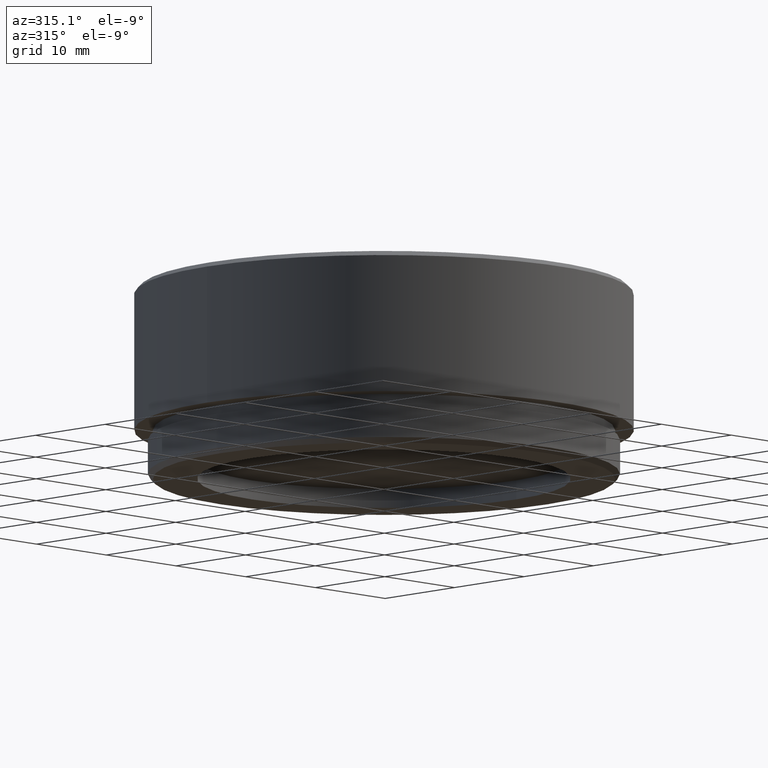
[diagram: clean part render]
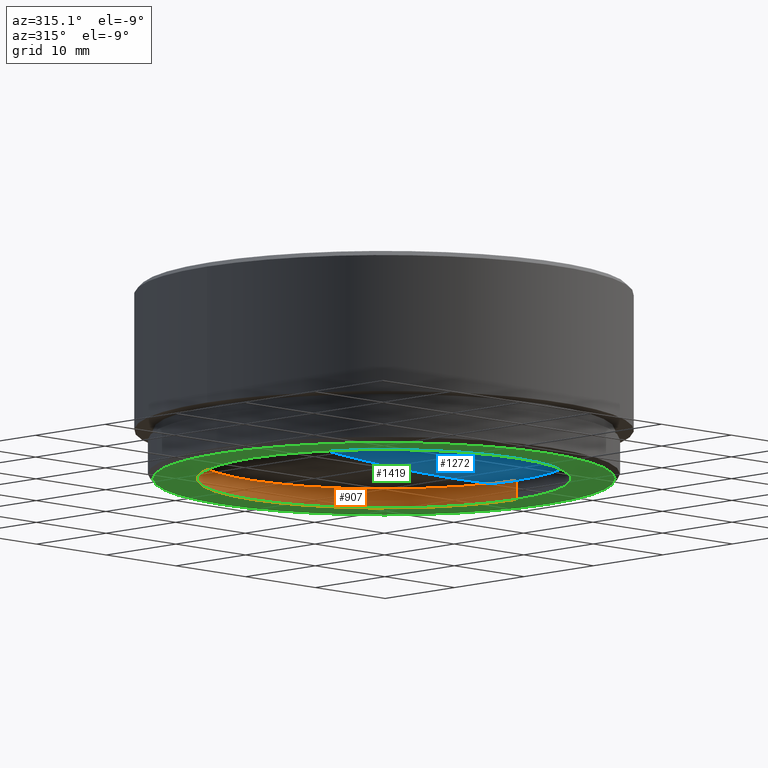
[diagram: same view with three faces highlighted in distinct colors, each labeled with its STEP entity id]
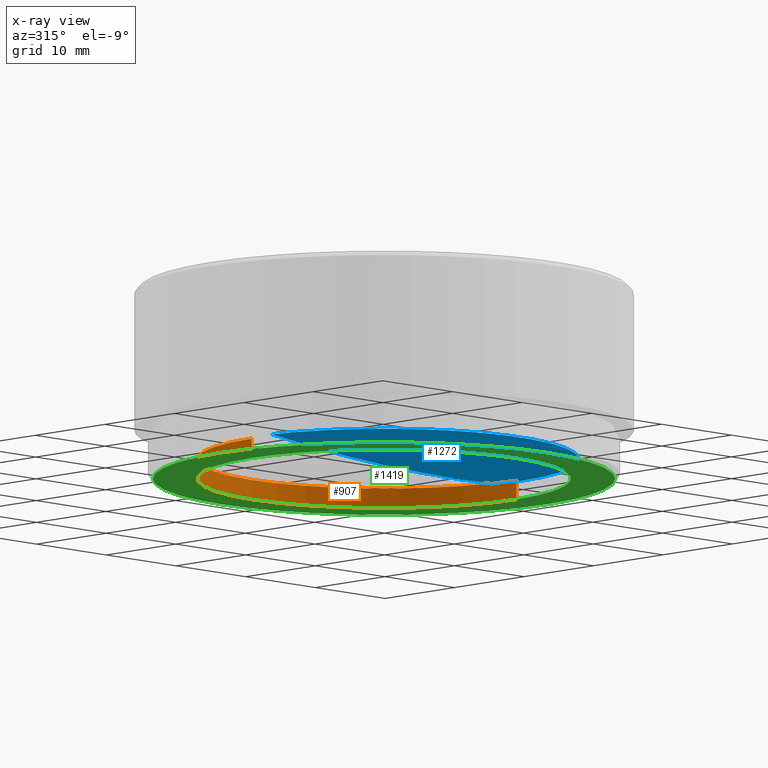
[diagram: x-ray of the same camera — body ghosted, the three highlighted faces saturated]
A machine part, auxiliary view with three faces highlighted in distinct colors.
The next image is the same camera in x-ray (body ghosted, the three faces saturated) — at least one of them is partly hidden behind the body in this view.
Their STEP definitions:

[orange] entity #907 — the highlighted cylindrical surface (partial cylindrical patch) has radius 19 mm, axis along (0, 0, -1).
#8 = VECTOR ( 'NONE', #813, 1000.000000000000000 ) ;
#110 = AXIS2_PLACEMENT_3D ( 'NONE', #834, #1442, #823 ) ;
#157 = CARTESIAN_POINT ( 'NONE',  ( 0.000000000000000000, 0.000000000000000000, 0.000000000000000000 ) ) ;
#226 = LINE ( 'NONE', #1441, #990 ) ;
#364 = VERTEX_POINT ( 'NONE', #607 ) ;
#529 = CARTESIAN_POINT ( 'NONE',  ( -19.00000000000000000, 0.000000000000000000, 2.000000000000000000 ) ) ;
#540 = CIRCLE ( 'NONE', #1096, 19.00000000000000000 ) ;
#569 = DIRECTION ( 'NONE',  ( 0.000000000000000000, 0.000000000000000000, -1.000000000000000000 ) ) ;
#604 = ORIENTED_EDGE ( 'NONE', *, *, #1054, .T. ) ;
#607 = CARTESIAN_POINT ( 'NONE',  ( -19.00000000000000000, 0.000000000000000000, 2.000000000000000000 ) ) ;
#625 = AXIS2_PLACEMENT_3D ( 'NONE', #157, #569, #717 ) ;
#717 = DIRECTION ( 'NONE',  ( -1.000000000000000000, 0.000000000000000000, 0.000000000000000000 ) ) ;
#813 = DIRECTION ( 'NONE',  ( 0.000000000000000000, 0.000000000000000000, -1.000000000000000000 ) ) ;
#823 = DIRECTION ( 'NONE',  ( -1.000000000000000000, 0.000000000000000000, 0.000000000000000000 ) ) ;
#834 = CARTESIAN_POINT ( 'NONE',  ( 0.000000000000000000, 0.000000000000000000, 2.000000000000000000 ) ) ;
#907 = ADVANCED_FACE ( 'NONE', ( #1567 ), #949, .F. ) ;
#943 = VERTEX_POINT ( 'NONE', #1855 ) ;
#949 = CYLINDRICAL_SURFACE ( 'NONE', #110, 19.00000000000000000 ) ;
#990 = VECTOR ( 'NONE', #1890, 1000.000000000000000 ) ;
#1037 = DIRECTION ( 'NONE',  ( 0.000000000000000000, 0.000000000000000000, -1.000000000000000000 ) ) ;
#1054 = EDGE_CURVE ( 'NONE', #943, #1057, #1128, .T. ) ;
#1057 = VERTEX_POINT ( 'NONE', #1770 ) ;
#1080 = ORIENTED_EDGE ( 'NONE', *, *, #1172, .F. ) ;
#1096 = AXIS2_PLACEMENT_3D ( 'NONE', #1779, #1037, #1640 ) ;
#1128 = CIRCLE ( 'NONE', #625, 19.00000000000000000 ) ;
#1172 = EDGE_CURVE ( 'NONE', #364, #1259, #540, .T. ) ;
#1203 = CARTESIAN_POINT ( 'NONE',  ( 19.00000000000000000, 2.326828918379970970E-15, 2.000000000000000000 ) ) ;
#1259 = VERTEX_POINT ( 'NONE', #1203 ) ;
#1398 = EDGE_LOOP ( 'NONE', ( #1429, #1080, #1456, #604 ) ) ;
#1429 = ORIENTED_EDGE ( 'NONE', *, *, #1520, .F. ) ;
#1441 = CARTESIAN_POINT ( 'NONE',  ( 19.00000000000000000, 2.326828918379970970E-15, 2.000000000000000000 ) ) ;
#1442 = DIRECTION ( 'NONE',  ( 0.000000000000000000, 0.000000000000000000, -1.000000000000000000 ) ) ;
#1456 = ORIENTED_EDGE ( 'NONE', *, *, #1626, .T. ) ;
#1520 = EDGE_CURVE ( 'NONE', #1259, #1057, #226, .T. ) ;
#1553 = LINE ( 'NONE', #529, #8 ) ;
#1567 = FACE_OUTER_BOUND ( 'NONE', #1398, .T. ) ;
#1626 = EDGE_CURVE ( 'NONE', #364, #943, #1553, .T. ) ;
#1640 = DIRECTION ( 'NONE',  ( -1.000000000000000000, 0.000000000000000000, 0.000000000000000000 ) ) ;
#1770 = CARTESIAN_POINT ( 'NONE',  ( 19.00000000000000000, 2.326828918379970970E-15, 0.000000000000000000 ) ) ;
#1779 = CARTESIAN_POINT ( 'NONE',  ( 0.000000000000000000, 0.000000000000000000, 2.000000000000000000 ) ) ;
#1855 = CARTESIAN_POINT ( 'NONE',  ( -19.00000000000000000, 0.000000000000000000, 0.000000000000000000 ) ) ;
#1890 = DIRECTION ( 'NONE',  ( 0.000000000000000000, 0.000000000000000000, -1.000000000000000000 ) ) ;

[blue] entity #1272 — the highlighted toroidal blend (fillet) surface has major radius 0.0714 mm and minor (blend) radius 329.985 mm.
#77 = AXIS2_PLACEMENT_3D ( 'NONE', #1365, #1700, #484 ) ;
#85 = CARTESIAN_POINT ( 'NONE',  ( -0.07141711536273570582, 0.000000000000000000, 322.3449922717634877 ) ) ;
#144 = EDGE_CURVE ( 'NONE', #1648, #1860, #1345, .T. ) ;
#228 = DIRECTION ( 'NONE',  ( 0.000000000000000000, -1.000000000000000000, 0.000000000000000000 ) ) ;
#282 = DIRECTION ( 'NONE',  ( 0.000000000000000000, 0.000000000000000000, -1.000000000000000000 ) ) ;
#311 = EDGE_CURVE ( 'NONE', #1648, #924, #882, .T. ) ;
#388 = TOROIDAL_SURFACE ( 'NONE', #77, -0.07141711536273570582, 329.9849999999999568 ) ;
#389 = CARTESIAN_POINT ( 'NONE',  ( -1.324081903147921785E-13, 0.000000000000000000, -7.639999999999999680 ) ) ;
#484 = DIRECTION ( 'NONE',  ( -1.000000000000000000, 0.000000000000000000, 0.000000000000000000 ) ) ;
#671 = CIRCLE ( 'NONE', #1674, 19.81205113459704847 ) ;
#819 = ORIENTED_EDGE ( 'NONE', *, *, #1673, .T. ) ;
#882 = CIRCLE ( 'NONE', #1613, 329.9849999999999568 ) ;
#924 = VERTEX_POINT ( 'NONE', #1300 ) ;
#932 = EDGE_LOOP ( 'NONE', ( #1737, #1848, #819 ) ) ;
#1024 = AXIS2_PLACEMENT_3D ( 'NONE', #1623, #1305, #1121 ) ;
#1121 = DIRECTION ( 'NONE',  ( -1.000000000000000000, 1.224646799147353947E-16, 0.000000000000000000 ) ) ;
#1221 = CARTESIAN_POINT ( 'NONE',  ( 0.000000000000000000, 0.000000000000000000, -7.040417112673339695 ) ) ;
#1264 = CARTESIAN_POINT ( 'NONE',  ( -19.81205113459704847, 2.437785049473754659E-15, -7.040417112673339695 ) ) ;
#1272 = ADVANCED_FACE ( 'NONE', ( #1508 ), #388, .T. ) ;
#1300 = CARTESIAN_POINT ( 'NONE',  ( 19.81205113459704847, 0.000000000000000000, -7.040417112673339695 ) ) ;
#1305 = DIRECTION ( 'NONE',  ( 1.224646799147353947E-16, 1.000000000000000000, 0.000000000000000000 ) ) ;
#1345 = CIRCLE ( 'NONE', #1024, 329.9849999999999568 ) ;
#1365 = CARTESIAN_POINT ( 'NONE',  ( 0.000000000000000000, 0.000000000000000000, 322.3449922717634877 ) ) ;
#1508 = FACE_OUTER_BOUND ( 'NONE', #932, .T. ) ;
#1613 = AXIS2_PLACEMENT_3D ( 'NONE', #85, #228, #1701 ) ;
#1623 = CARTESIAN_POINT ( 'NONE',  ( 0.07141711536273570582, -8.746074173331150068E-18, 322.3449922717634877 ) ) ;
#1648 = VERTEX_POINT ( 'NONE', #389 ) ;
#1660 = DIRECTION ( 'NONE',  ( 1.000000000000000000, 0.000000000000000000, 0.000000000000000000 ) ) ;
#1673 = EDGE_CURVE ( 'NONE', #924, #1860, #671, .T. ) ;
#1674 = AXIS2_PLACEMENT_3D ( 'NONE', #1221, #282, #1660 ) ;
#1700 = DIRECTION ( 'NONE',  ( 0.000000000000000000, 0.000000000000000000, 1.000000000000000000 ) ) ;
#1701 = DIRECTION ( 'NONE',  ( 0.000000000000000000, 0.000000000000000000, -1.000000000000000000 ) ) ;
#1737 = ORIENTED_EDGE ( 'NONE', *, *, #144, .F. ) ;
#1848 = ORIENTED_EDGE ( 'NONE', *, *, #311, .T. ) ;
#1860 = VERTEX_POINT ( 'NONE', #1264 ) ;

[green] entity #1419 — the highlighted planar face has unit normal (0, 0, 1).
#28 = AXIS2_PLACEMENT_3D ( 'NONE', #1888, #707, #1751 ) ;
#29 = CARTESIAN_POINT ( 'NONE',  ( 0.000000000000000000, 0.000000000000000000, 0.000000000000000000 ) ) ;
#130 = VERTEX_POINT ( 'NONE', #1767 ) ;
#157 = CARTESIAN_POINT ( 'NONE',  ( 0.000000000000000000, 0.000000000000000000, 0.000000000000000000 ) ) ;
#182 = EDGE_CURVE ( 'NONE', #1057, #943, #639, .T. ) ;
#343 = EDGE_CURVE ( 'NONE', #130, #1655, #1421, .T. ) ;
#360 = EDGE_LOOP ( 'NONE', ( #772, #1393 ) ) ;
#378 = ORIENTED_EDGE ( 'NONE', *, *, #1054, .F. ) ;
#460 = EDGE_LOOP ( 'NONE', ( #378, #1479 ) ) ;
#502 = DIRECTION ( 'NONE',  ( 1.000000000000000000, 0.000000000000000000, -0.000000000000000000 ) ) ;
#569 = DIRECTION ( 'NONE',  ( 0.000000000000000000, 0.000000000000000000, -1.000000000000000000 ) ) ;
#625 = AXIS2_PLACEMENT_3D ( 'NONE', #157, #569, #717 ) ;
#639 = CIRCLE ( 'NONE', #28, 19.00000000000000000 ) ;
#642 = PLANE ( 'NONE',  #1404 ) ;
#707 = DIRECTION ( 'NONE',  ( 0.000000000000000000, 0.000000000000000000, -1.000000000000000000 ) ) ;
#717 = DIRECTION ( 'NONE',  ( -1.000000000000000000, 0.000000000000000000, 0.000000000000000000 ) ) ;
#731 = CARTESIAN_POINT ( 'NONE',  ( 0.000000000000000000, 0.000000000000000000, 0.000000000000000000 ) ) ;
#772 = ORIENTED_EDGE ( 'NONE', *, *, #343, .T. ) ;
#787 = FACE_OUTER_BOUND ( 'NONE', #360, .T. ) ;
#886 = DIRECTION ( 'NONE',  ( 1.000000000000000000, 0.000000000000000000, 0.000000000000000000 ) ) ;
#943 = VERTEX_POINT ( 'NONE', #1855 ) ;
#1005 = CIRCLE ( 'NONE', #1785, 23.50000000000001421 ) ;
#1023 = DIRECTION ( 'NONE',  ( 1.000000000000000000, 0.000000000000000000, 0.000000000000000000 ) ) ;
#1054 = EDGE_CURVE ( 'NONE', #943, #1057, #1128, .T. ) ;
#1057 = VERTEX_POINT ( 'NONE', #1770 ) ;
#1094 = EDGE_CURVE ( 'NONE', #1655, #130, #1005, .T. ) ;
#1128 = CIRCLE ( 'NONE', #625, 19.00000000000000000 ) ;
#1242 = CARTESIAN_POINT ( 'NONE',  ( 0.000000000000000000, 0.000000000000000000, 0.000000000000000000 ) ) ;
#1348 = DIRECTION ( 'NONE',  ( -0.000000000000000000, -0.000000000000000000, -1.000000000000000000 ) ) ;
#1392 = FACE_BOUND ( 'NONE', #460, .T. ) ;
#1393 = ORIENTED_EDGE ( 'NONE', *, *, #1094, .T. ) ;
#1404 = AXIS2_PLACEMENT_3D ( 'NONE', #1242, #1838, #502 ) ;
#1417 = CARTESIAN_POINT ( 'NONE',  ( -23.50000000000001421, 2.908536147974965291E-15, 0.000000000000000000 ) ) ;
#1419 = ADVANCED_FACE ( 'NONE', ( #787, #1392 ), #642, .F. ) ;
#1421 = CIRCLE ( 'NONE', #1856, 23.50000000000001421 ) ;
#1479 = ORIENTED_EDGE ( 'NONE', *, *, #182, .F. ) ;
#1655 = VERTEX_POINT ( 'NONE', #1417 ) ;
#1751 = DIRECTION ( 'NONE',  ( -1.000000000000000000, 0.000000000000000000, 0.000000000000000000 ) ) ;
#1762 = DIRECTION ( 'NONE',  ( -0.000000000000000000, -0.000000000000000000, -1.000000000000000000 ) ) ;
#1767 = CARTESIAN_POINT ( 'NONE',  ( 23.50000000000001421, 0.000000000000000000, 0.000000000000000000 ) ) ;
#1770 = CARTESIAN_POINT ( 'NONE',  ( 19.00000000000000000, 2.326828918379970970E-15, 0.000000000000000000 ) ) ;
#1785 = AXIS2_PLACEMENT_3D ( 'NONE', #731, #1762, #1023 ) ;
#1838 = DIRECTION ( 'NONE',  ( 0.000000000000000000, 0.000000000000000000, 1.000000000000000000 ) ) ;
#1855 = CARTESIAN_POINT ( 'NONE',  ( -19.00000000000000000, 0.000000000000000000, 0.000000000000000000 ) ) ;
#1856 = AXIS2_PLACEMENT_3D ( 'NONE', #29, #1348, #886 ) ;
#1888 = CARTESIAN_POINT ( 'NONE',  ( 0.000000000000000000, 0.000000000000000000, 0.000000000000000000 ) ) ;